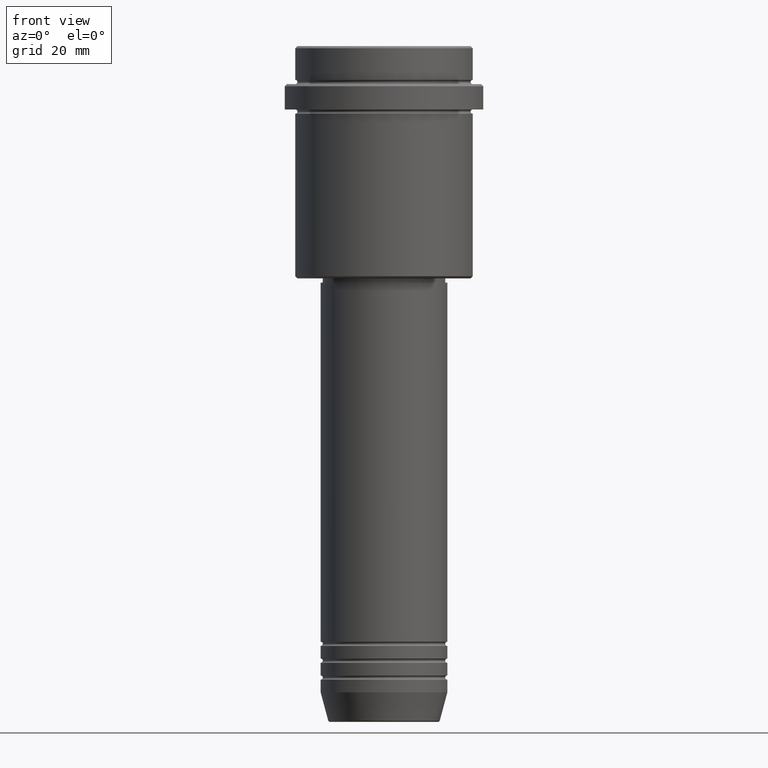
[diagram: clean part render]
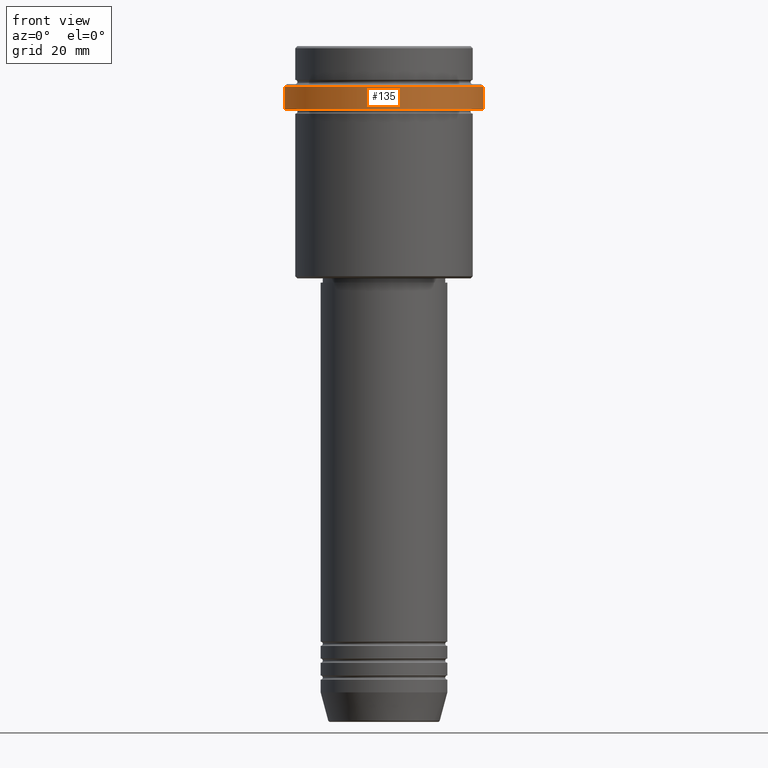
[diagram: same view with one face highlighted and labeled with its STEP entity id]
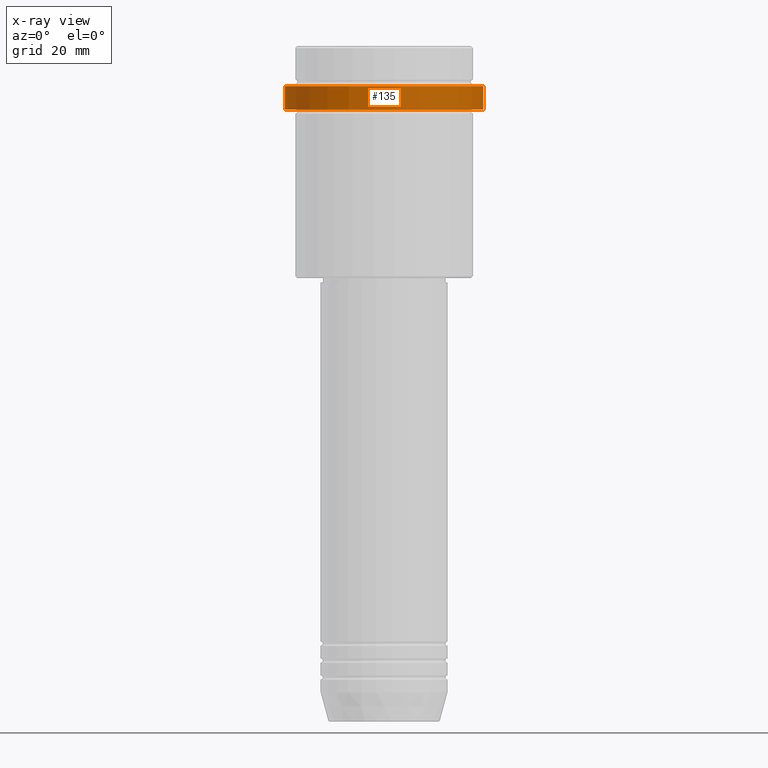
[diagram: x-ray of the same camera — body ghosted, the highlighted face saturated]
A machine part, front view. The second image highlights one B-rep face of the part: STEP entity #135.
The next image is the same camera in x-ray: the body ghosted, the highlighted face saturated — about 0% of this face is hidden behind the body in this view.
In plain terms, the highlighted cylindrical surface (partial cylindrical patch) has radius 23.5 mm, axis along (-0, -0, 1).
Its self-contained STEP definition (entity closure, byte-faithful):
#96 = DIRECTION ( 'NONE',  ( 1.000000000000000000, 0.000000000000000000, 0.000000000000000000 ) ) ;
#116 = AXIS2_PLACEMENT_3D ( 'NONE', #1193, #398, #96 ) ;
#135 = ADVANCED_FACE ( 'NONE', ( #1404 ), #449, .T. ) ;
#180 = EDGE_CURVE ( 'NONE', #1311, #193, #786, .T. ) ;
#193 = VERTEX_POINT ( 'NONE', #803 ) ;
#238 = CARTESIAN_POINT ( 'NONE',  ( 0.000000000000000000, 0.000000000000000000, 0.000000000000000000 ) ) ;
#275 = ORIENTED_EDGE ( 'NONE', *, *, #874, .T. ) ;
#297 = CARTESIAN_POINT ( 'NONE',  ( -23.50000000000000000, 2.877919977996280320E-15, 0.000000000000000000 ) ) ;
#301 = ORIENTED_EDGE ( 'NONE', *, *, #422, .F. ) ;
#398 = DIRECTION ( 'NONE',  ( -0.000000000000000000, -0.000000000000000000, 1.000000000000000000 ) ) ;
#420 = DIRECTION ( 'NONE',  ( -0.000000000000000000, -0.000000000000000000, 1.000000000000000000 ) ) ;
#422 = EDGE_CURVE ( 'NONE', #1145, #951, #606, .T. ) ;
#449 = CYLINDRICAL_SURFACE ( 'NONE', #1371, 23.50000000000000000 ) ;
#510 = CARTESIAN_POINT ( 'NONE',  ( 0.000000000000000000, 0.000000000000000000, -9.500000000000014211 ) ) ;
#536 = ORIENTED_EDGE ( 'NONE', *, *, #1244, .T. ) ;
#574 = CIRCLE ( 'NONE', #618, 23.50000000000000000 ) ;
#606 = LINE ( 'NONE', #297, #1387 ) ;
#618 = AXIS2_PLACEMENT_3D ( 'NONE', #510, #847, #824 ) ;
#692 = DIRECTION ( 'NONE',  ( -0.000000000000000000, -0.000000000000000000, 1.000000000000000000 ) ) ;
#734 = DIRECTION ( 'NONE',  ( -0.000000000000000000, -0.000000000000000000, 1.000000000000000000 ) ) ;
#786 = LINE ( 'NONE', #1340, #1211 ) ;
#803 = CARTESIAN_POINT ( 'NONE',  ( 23.50000000000000000, 0.000000000000000000, -9.500000000000014211 ) ) ;
#824 = DIRECTION ( 'NONE',  ( 1.000000000000000000, 0.000000000000000000, 0.000000000000000000 ) ) ;
#847 = DIRECTION ( 'NONE',  ( 0.000000000000000000, 0.000000000000000000, -1.000000000000000000 ) ) ;
#859 = DIRECTION ( 'NONE',  ( 1.000000000000000000, 0.000000000000000000, 0.000000000000000000 ) ) ;
#874 = EDGE_CURVE ( 'NONE', #1145, #1311, #1057, .T. ) ;
#875 = EDGE_LOOP ( 'NONE', ( #301, #275, #1127, #536 ) ) ;
#951 = VERTEX_POINT ( 'NONE', #1415 ) ;
#1027 = CARTESIAN_POINT ( 'NONE',  ( -23.50000000000000711, 2.877919977996281109E-15, -15.00000000000000000 ) ) ;
#1057 = CIRCLE ( 'NONE', #116, 23.50000000000000355 ) ;
#1127 = ORIENTED_EDGE ( 'NONE', *, *, #180, .T. ) ;
#1145 = VERTEX_POINT ( 'NONE', #1027 ) ;
#1193 = CARTESIAN_POINT ( 'NONE',  ( 0.000000000000000000, 0.000000000000000000, -15.00000000000000000 ) ) ;
#1211 = VECTOR ( 'NONE', #692, 1000.000000000000000 ) ;
#1244 = EDGE_CURVE ( 'NONE', #193, #951, #574, .T. ) ;
#1282 = CARTESIAN_POINT ( 'NONE',  ( 23.50000000000000355, 0.000000000000000000, -15.00000000000000000 ) ) ;
#1311 = VERTEX_POINT ( 'NONE', #1282 ) ;
#1340 = CARTESIAN_POINT ( 'NONE',  ( 23.50000000000000000, 0.000000000000000000, 0.000000000000000000 ) ) ;
#1371 = AXIS2_PLACEMENT_3D ( 'NONE', #238, #420, #859 ) ;
#1387 = VECTOR ( 'NONE', #734, 1000.000000000000000 ) ;
#1404 = FACE_OUTER_BOUND ( 'NONE', #875, .T. ) ;
#1415 = CARTESIAN_POINT ( 'NONE',  ( -23.50000000000000000, 2.877919977996280320E-15, -9.500000000000014211 ) ) ;